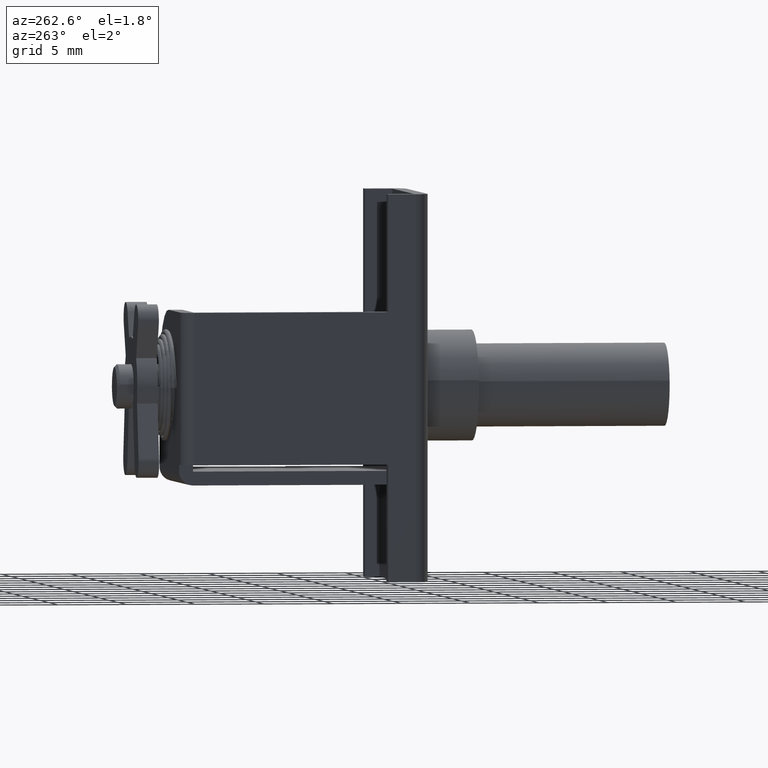
[diagram: clean part render]
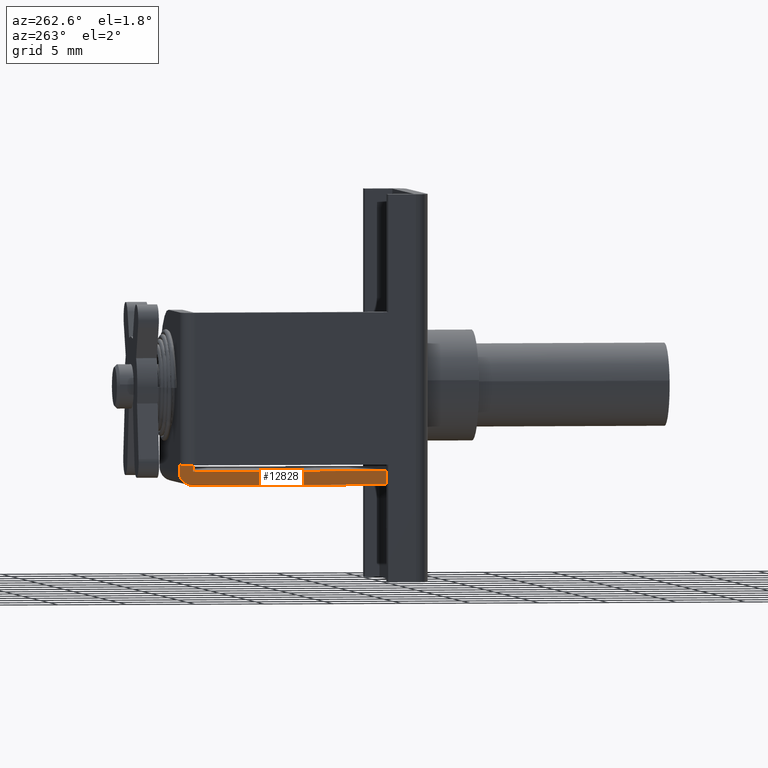
[diagram: same view with one face highlighted and labeled with its STEP entity id]
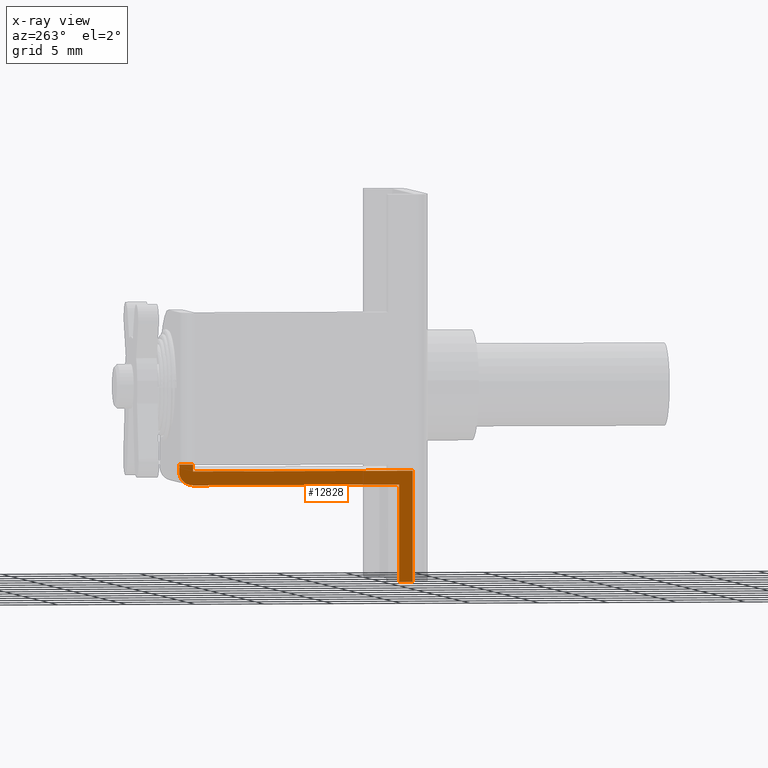
[diagram: x-ray of the same camera — body ghosted, the highlighted face saturated]
A machine part, auxiliary view. The second image highlights one B-rep face of the part: STEP entity #12828.
The next image is the same camera in x-ray: the body ghosted, the highlighted face saturated — about 0% of this face is hidden behind the body in this view.
In plain terms, the highlighted face is a freeform B-spline surface patch.
Its self-contained STEP definition (entity closure, byte-faithful):
#12626=CARTESIAN_POINT('',(1.009999999999900,5.500000000000000,-14.000000000000121));
#12627=VERTEX_POINT('',#12626);
#12628=CARTESIAN_POINT('',(1.009999999999900,5.500000000000000,-6.0));
#12629=VERTEX_POINT('',#12628);
#12630=CARTESIAN_POINT('',(1.009999999999900,5.500000000000000,-14.000000000000121));
#12631=CARTESIAN_POINT('',(1.009999999999900,5.500000000000000,-6.0));
#12632=QUASI_UNIFORM_CURVE('',1,(#12630,#12631),.UNSPECIFIED.,.F.,.U.);
#12633=EDGE_CURVE('',#12627,#12629,#12632,.T.);
#12731=CARTESIAN_POINT('',(2.0,5.500000000000000,-14.0));
#12732=VERTEX_POINT('',#12731);
#12738=CARTESIAN_POINT('',(2.0,5.500000000000000,-7.0));
#12739=VERTEX_POINT('',#12738);
#12740=CARTESIAN_POINT('',(2.0,5.500000000000000,-7.0));
#12741=CARTESIAN_POINT('',(2.0,5.500000000000000,-14.0));
#12742=QUASI_UNIFORM_CURVE('',1,(#12740,#12741),.UNSPECIFIED.,.F.,.U.);
#12743=EDGE_CURVE('',#12739,#12732,#12742,.T.);
#12766=CARTESIAN_POINT('',(0.161349532929811,5.500000000000000,-14.424574983525490));
#12767=CARTESIAN_POINT('',(18.848650922777399,5.500000000000000,-14.424574983525490));
#12768=CARTESIAN_POINT('',(0.161349532929811,5.500000000000000,-5.075424788486739));
#12769=CARTESIAN_POINT('',(18.848650922777399,5.500000000000000,-5.075424788486739));
#12770=B_SPLINE_SURFACE_WITH_KNOTS('',1,1,((#12766,#12768),(#12767,#12769)),.UNSPECIFIED.,.F.,.F.,.U.,(2,2),(2,2),(0.0,18.687301389847590),(0.0,9.349150195038748),.UNSPECIFIED.);
#12771=CARTESIAN_POINT('',(2.0,5.500000000000000,-14.0));
#12772=CARTESIAN_POINT('',(1.009999999999900,5.500000000000000,-14.000000000000121));
#12773=QUASI_UNIFORM_CURVE('',1,(#12771,#12772),.UNSPECIFIED.,.F.,.U.);
#12774=EDGE_CURVE('',#12732,#12627,#12773,.T.);
#12775=ORIENTED_EDGE('',*,*,#12774,.T.);
#12776=ORIENTED_EDGE('',*,*,#12633,.T.);
#12777=CARTESIAN_POINT('',(17.0,5.500000000000000,-6.0));
#12778=VERTEX_POINT('',#12777);
#12779=CARTESIAN_POINT('',(17.0,5.500000000000000,-6.0));
#12780=CARTESIAN_POINT('',(1.009999999999900,5.500000000000000,-6.0));
#12781=QUASI_UNIFORM_CURVE('',1,(#12779,#12780),.UNSPECIFIED.,.F.,.U.);
#12782=EDGE_CURVE('',#12778,#12629,#12781,.T.);
#12783=ORIENTED_EDGE('',*,*,#12782,.F.);
#12784=CARTESIAN_POINT('',(17.0,5.500000000000000,-5.499999999999869));
#12785=VERTEX_POINT('',#12784);
#12786=CARTESIAN_POINT('',(17.0,5.500000000000000,-5.499999999999869));
#12787=CARTESIAN_POINT('',(17.0,5.500000000000000,-6.0));
#12788=QUASI_UNIFORM_CURVE('',1,(#12786,#12787),.UNSPECIFIED.,.F.,.U.);
#12789=EDGE_CURVE('',#12785,#12778,#12788,.T.);
#12790=ORIENTED_EDGE('',*,*,#12789,.F.);
#12791=CARTESIAN_POINT('',(18.0,5.500000000000000,-5.499999999999869));
#12792=VERTEX_POINT('',#12791);
#12793=CARTESIAN_POINT('',(18.0,5.500000000000000,-5.499999999999869));
#12794=CARTESIAN_POINT('',(17.0,5.500000000000000,-5.499999999999869));
#12795=QUASI_UNIFORM_CURVE('',1,(#12793,#12794),.UNSPECIFIED.,.F.,.U.);
#12796=EDGE_CURVE('',#12792,#12785,#12795,.T.);
#12797=ORIENTED_EDGE('',*,*,#12796,.F.);
#12798=CARTESIAN_POINT('',(18.0,5.500000000000000,-6.0));
#12799=VERTEX_POINT('',#12798);
#12800=CARTESIAN_POINT('',(18.0,5.500000000000000,-6.0));
#12801=CARTESIAN_POINT('',(18.0,5.500000000000000,-5.499999999999869));
#12802=QUASI_UNIFORM_CURVE('',1,(#12800,#12801),.UNSPECIFIED.,.F.,.U.);
#12803=EDGE_CURVE('',#12799,#12792,#12802,.T.);
#12804=ORIENTED_EDGE('',*,*,#12803,.F.);
#12805=CARTESIAN_POINT('',(17.0,5.500000000000000,-7.0));
#12806=VERTEX_POINT('',#12805);
#12807=CARTESIAN_POINT('',(17.0,5.500000000000000,-7.0));
#12808=CARTESIAN_POINT('',(18.000000000000007,5.500000000000001,-6.999999999999999));
#12809=CARTESIAN_POINT('',(18.0,5.500000000000000,-6.0));
#12817=(BOUNDED_CURVE()B_SPLINE_CURVE(2,(#12807,#12808,#12809),.UNSPECIFIED.,.F.,.U.)CURVE()GEOMETRIC_REPRESENTATION_ITEM()QUASI_UNIFORM_CURVE()RATIONAL_B_SPLINE_CURVE((1.0,0.707106781186548,1.0))REPRESENTATION_ITEM(''));
#12818=EDGE_CURVE('',#12806,#12799,#12817,.T.);
#12819=ORIENTED_EDGE('',*,*,#12818,.F.);
#12820=CARTESIAN_POINT('',(2.0,5.500000000000000,-7.0));
#12821=CARTESIAN_POINT('',(17.0,5.500000000000000,-7.0));
#12822=QUASI_UNIFORM_CURVE('',1,(#12820,#12821),.UNSPECIFIED.,.F.,.U.);
#12823=EDGE_CURVE('',#12739,#12806,#12822,.T.);
#12824=ORIENTED_EDGE('',*,*,#12823,.F.);
#12825=ORIENTED_EDGE('',*,*,#12743,.T.);
#12826=EDGE_LOOP('',(#12775,#12776,#12783,#12790,#12797,#12804,#12819,#12824,#12825));
#12827=FACE_OUTER_BOUND('',#12826,.T.);
#12828=ADVANCED_FACE('',(#12827),#12770,.F.);